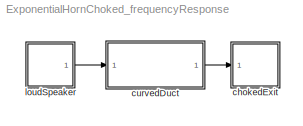
MODEL ExponentialHornChoked_frequencyResponse
KIND model
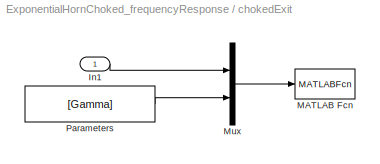
BLOCK [SubSystem] chokedExit
  FunctionWithSeparateData = off
  MaskDisplay = patch([0 .6 .6 0],[.2 .2 .8 .8],[.7 1 1])\npatch([.6 .7 .7 .6],[.2 .2 .8 .8],[.8 1 1])\npatch([.7 .8 .8 .7],[.2 .2 .8 .8],[.9 1 1])\nplot([0 .7 .7],[.2 .2 .35])\nplot([0 .7 .7],[.8 .8 .65])\nport_label('input',1,'M>1')\nplot([1 1 0 0 1],[1 0 0 1 1])\n
  MaskEnableString = on
  MaskHideContents = off
  MaskIconFrame = off
  MaskIconOpaque = on
  MaskIconRotate = port
  MaskIconUnits = normalized
  MaskPortRotate = default
  MaskPromptString = Gamma (dimensionless)
  MaskStyleString = edit
  MaskToolTipString = on
  MaskTunableValueString = on
  MaskValueString = 1.4
  MaskVariables = Gamma=@1;
  MaskVisibilityString = on
  MinAlgLoopOccurrences = off
  Opaque = off
  Ports = [1]
  PropExecContextOutsideSubsystem = off
  RTWSystemCode = Auto
  RequestExecContextInheritance = off
  SID = 54
BLOCK [Inport] chokedExit/In1
  IconDisplay = Port number
  SID = 55
BLOCK [MATLABFcn] chokedExit/MATLAB Fcn
  MATLABFcn = chokedExit(u(1),u(2))
  OutputDimensions = 0
  Ports = [1]
  SID = 56
BLOCK [Mux] chokedExit/Mux
  DisplayOption = bar
  Inputs = 2
  Ports = [2, 1]
  SID = 57
BLOCK [Constant] chokedExit/Parameters
  SID = 58
  Value = [Gamma]
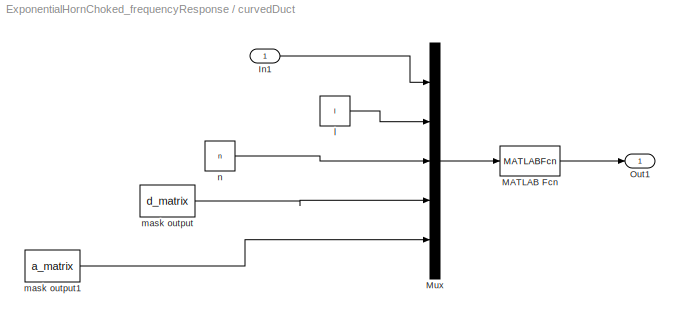
BLOCK [SubSystem] curvedDuct
  FunctionWithSeparateData = off
  MaskCallbackString = |maskStr = get_param(gcb,'MaskValues');\n\n% check if The checkbox is selected or not.\n\nif strcmp(maskStr{2},'on')\n    \n    MaskVisibi=get_param(gcb,'MaskVisibilities');\n    MaskVisibi{3}='off';\n    set_param(gcb,'MaskVisibilities',MaskVisibi)\nelse\n    MaskVisibi=get_param(gcb,'MaskVisibilities');\n    MaskVisibi{3}='on';\n    set_param(gcb,'MaskVisibilities',MaskVisibi)\nend|||
  MaskDisplay = patch([0  .2 .3 .7 .8 1  1  .8 .7 .3 .2  0],...\n      [.2 .1 .1 .3 .3 .2 .8 .7 .7 .9 .9 .8],[.7 1 1])\nplot([0 .2 .3 .7 .8 1],[.2 .1 .1 .3 .3 .2])\nplot([0 .2 .3 .7 .8 1],[.8 .9 .9 .7 .7 .8])\ntext(.4,.5,'A(x)','HorizontalAlignment','center')\nplot([1 1 0 0 1],[1 0 0 1 1])\n
  MaskEnableString = on,on,on,on,on
  MaskHideContents = off
  MaskIconFrame = off
  MaskIconOpaque = on
  MaskIconRotate = port
  MaskIconUnits = normalized
  MaskInitialization = mode=0;\n   \n   switch d_Auto\n       case 1\n           d_poly='-1';\n       case 0 \n           d_poly=d_polyin;   \n   end\n    \n   tk=0;\n\n   for kk = -0.5:1:n+1      \n       tk=tk+1;\n       xx=kk*l/n ;\n       x=max(xx,0) ;\n       x=min(x,l) ; \n       Di = double(eval(d_poly)); \n       switch d_Auto\n           case 0\n            if Di<0\n              if mode~=0\n                  e...<+536ch>
  MaskPortRotate = default
  MaskPromptString = Area function A(x) (m²)|Diameter Automatic|Diameter function D(x) (m)|Lenght (m)|Number of \"discretization\" elements
  MaskStyleString = edit,checkbox,edit,edit,edit
  MaskToolTipString = on,on,on,on,on
  MaskTunableValueString = on,on,on,on,on
  MaskValueString = exp(2*x)|on|'1'|1|25
  MaskVariables = surface_poly=@1;d_Auto=@2;d_polyin=@3;l=@4;n=@5;
  MaskVisibilityString = on,on,off,on,on
  MinAlgLoopOccurrences = off
  Opaque = off
  Ports = [1, 1]
  PropExecContextOutsideSubsystem = off
  RTWSystemCode = Auto
  RequestExecContextInheritance = off
  SID = 74
BLOCK [Inport] curvedDuct/In1
  IconDisplay = Port number
  SID = 75
BLOCK [MATLABFcn] curvedDuct/MATLAB Fcn
  MATLABFcn = curvedDuct(u(1),u(2),u(3),u(4:n+5),u(n+6:2*n+7))
  OutputDimensions = 1
  Ports = [1, 1]
  SID = 76
BLOCK [Mux] curvedDuct/Mux
  DisplayOption = bar
  Inputs = 5
  Ports = [5, 1]
  SID = 77
BLOCK [Outport] curvedDuct/Out1
  IconDisplay = Port number
  SID = 82
BLOCK [Constant] curvedDuct/l
  SID = 78
  Value = l
BLOCK [Constant] curvedDuct/mask output
  SID = 79
  Value = d_matrix
BLOCK [Constant] curvedDuct/mask output1
  SID = 80
  Value = a_matrix
BLOCK [Constant] curvedDuct/n
  SID = 81
  Value = n
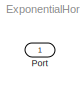
BLOCK [SubSystem] loudSpeaker
  FunctionWithSeparateData = off
  MaskCallbackString = ||||||
  MaskDisplay = plot([.2 .2 .4 .4 .2],[.6 .4 .4 .6 .6])\nplot([.7 .7 .4 .4 .7],[.9 .1 .3 .7 .9])
  MaskEnableString = on,on,on,on,on,on,on
  MaskHideContents = off
  MaskIconFrame = off
  MaskIconOpaque = on
  MaskIconRotate = port
  MaskIconUnits = normalized
  MaskInitialization = if Mach<0\n   errordlg('Mach Number must be bigger than or equal to zero','invalid Mach Number');\nend\n\n\nif c<=0\n    errordlg('speed of sound must be positive','invalid speed of sound');\nend\n\n\nif D<=0\n     errordlg('diameter must be positive','invalid diameter');\n\nend\n\n\nif rho<=0\n     errordlg('density must be positive','invalid density');\nend\n\n% Set identifier\nset_param(gcb,'el...<+64ch>
  MaskPortRotate = default
  MaskPromptString = Location|Foringamplitude [m/s]|Speed of sound (m/s)|Mach number (dimensionless)|Density (Kg/m³)|Diameter (m)|element
  MaskSelfModifiable = on
  MaskStyleString = popup(Downstream|Upstream),edit,edit,edit,edit,edit,edit
  MaskToolTipString = on,on,on,on,on,on,on
  MaskTunableValueString = off,on,on,on,on,on,off
  MaskValueString = Upstream|1|100|0|1.2|1|loudSpeaker
  MaskVariables = loc=&1;Amp=@2;c=@3;Mach=@4;rho=@5;D=@6;element=&7;
  MaskVisibilityString = on,on,on,on,on,on,off
  MinAlgLoopOccurrences = off
  Opaque = off
  Ports = [0, 1]
  PropExecContextOutsideSubsystem = off
  RTWSystemCode = Auto
  RequestExecContextInheritance = off
  SID = 43
BLOCK [Outport] loudSpeaker/Port
  IconDisplay = Port number
  SID = 43:64
LINE chokedExit/In1:1 -> chokedExit/Mux:1
LINE chokedExit/Mux:1 -> chokedExit/MATLAB Fcn:1
LINE chokedExit/Parameters:1 -> chokedExit/Mux:2
LINE curvedDuct/In1:1 -> curvedDuct/Mux:1
LINE curvedDuct/MATLAB Fcn:1 -> curvedDuct/Out1:1
LINE curvedDuct/Mux:1 -> curvedDuct/MATLAB Fcn:1
LINE curvedDuct/l:1 -> curvedDuct/Mux:2
LINE curvedDuct/mask output1:1 -> curvedDuct/Mux:5
LINE curvedDuct/mask output:1 -> curvedDuct/Mux:4
LINE curvedDuct/n:1 -> curvedDuct/Mux:3
LINE curvedDuct:1 -> chokedExit:1
LINE loudSpeaker:1 -> curvedDuct:1
